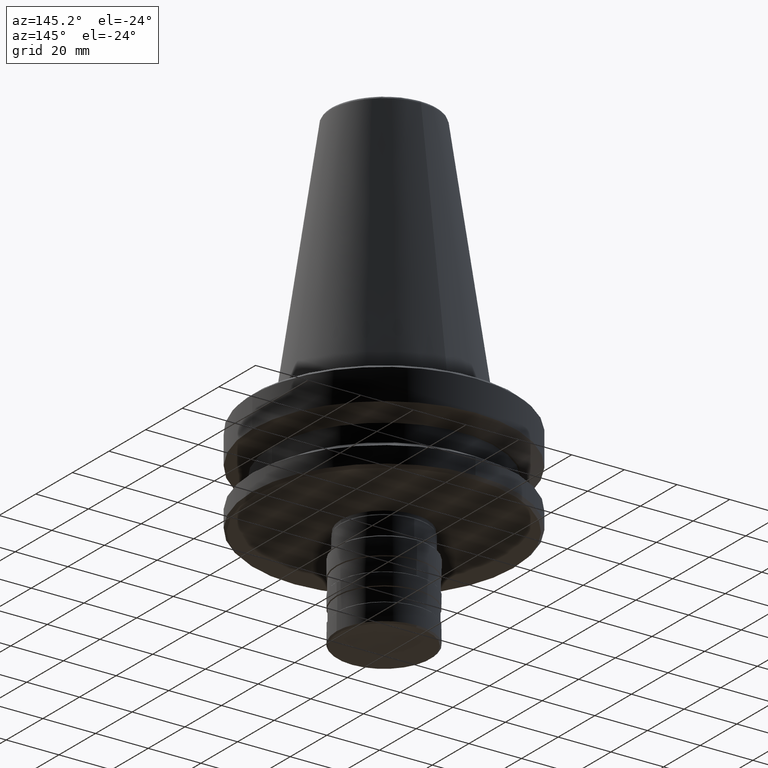
[diagram: clean part render]
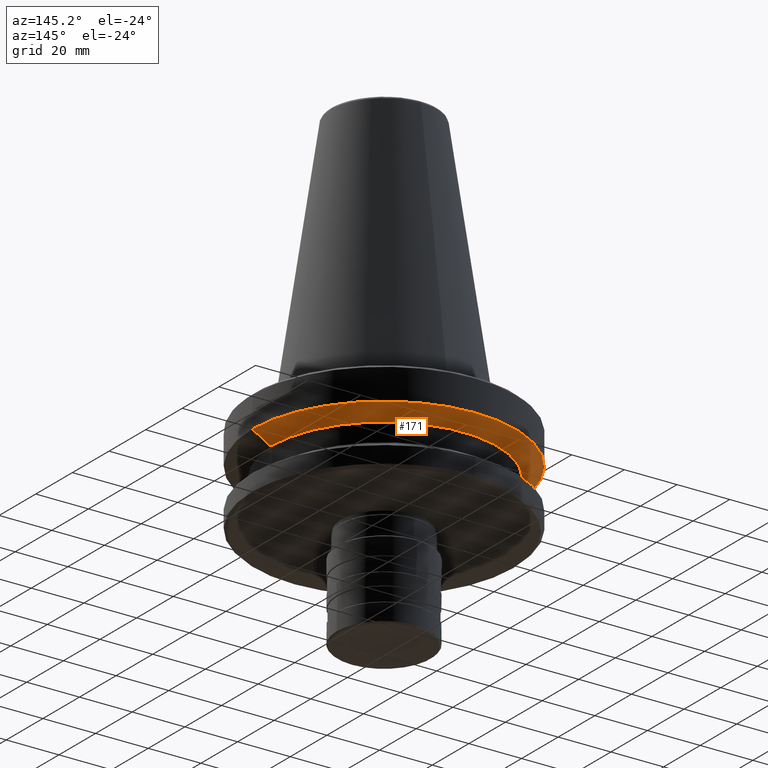
[diagram: same view with one face highlighted and labeled with its STEP entity id]
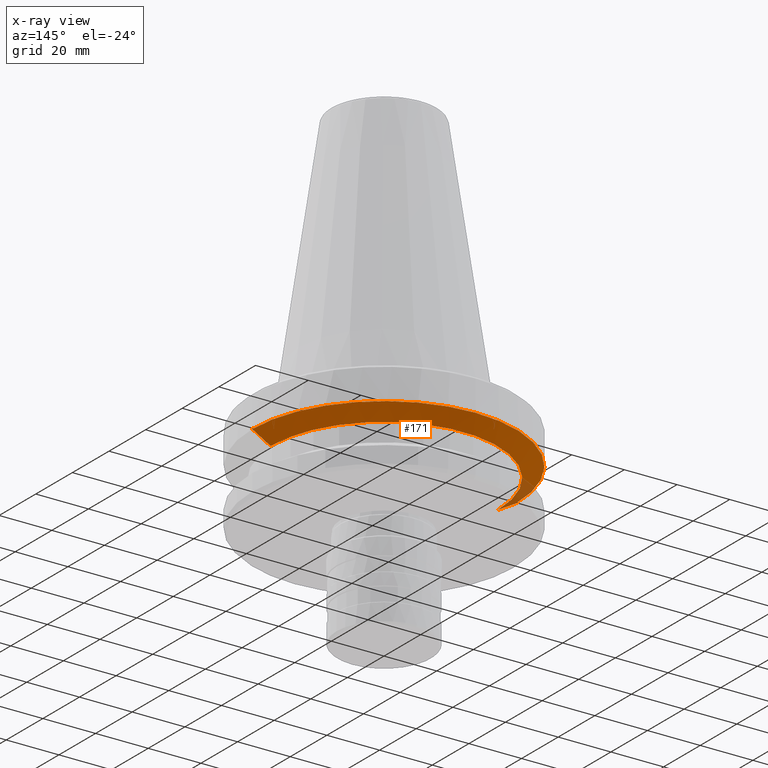
[diagram: x-ray of the same camera — body ghosted, the highlighted face saturated]
A machine part, auxiliary view. The second image highlights one B-rep face of the part: STEP entity #171.
The next image is the same camera in x-ray: the body ghosted, the highlighted face saturated — about 4% of this face is hidden behind the body in this view.
In plain terms, the highlighted conical surface has half-angle 60 deg.
Its self-contained STEP definition (entity closure, byte-faithful):
#14 = ORIENTED_EDGE ( 'NONE', *, *, #1989, .T. ) ;
#112 = DIRECTION ( 'NONE',  ( -0.8660254037875104700, 1.060575238728668800E-016, 0.4999999999946794200 ) ) ;
#120 = CARTESIAN_POINT ( 'NONE',  ( -50.00000000125927400, 6.123233995890982900E-015, -15.70022000227295300 ) ) ;
#171 = ADVANCED_FACE ( 'NONE', ( #1619 ), #2022, .T. ) ;
#202 = VERTEX_POINT ( 'NONE', #1921 ) ;
#221 = CARTESIAN_POINT ( 'NONE',  ( -43.07217782308627100, 5.699027233112901500E-015, -19.70000000168224800 ) ) ;
#297 = ORIENTED_EDGE ( 'NONE', *, *, #1135, .T. ) ;
#303 = VECTOR ( 'NONE', #1528, 1000.000000000000000 ) ;
#597 = AXIS2_PLACEMENT_3D ( 'NONE', #1846, #1993, #1988 ) ;
#600 = DIRECTION ( 'NONE',  ( 1.000000000000000000, 0.0000000000000000000, 0.0000000000000000000 ) ) ;
#607 = DIRECTION ( 'NONE',  ( -0.0000000000000000000, -0.0000000000000000000, -1.000000000000000000 ) ) ;
#611 = CIRCLE ( 'NONE', #2249, 43.07217782308627100 ) ;
#612 = CARTESIAN_POINT ( 'NONE',  ( 0.0000000000000000000, 0.0000000000000000000, -15.70022000227295700 ) ) ;
#642 = EDGE_CURVE ( 'NONE', #1503, #202, #2037, .T. ) ;
#646 = ORIENTED_EDGE ( 'NONE', *, *, #1986, .F. ) ;
#706 = LINE ( 'NONE', #120, #1420 ) ;
#882 = AXIS2_PLACEMENT_3D ( 'NONE', #612, #607, #600 ) ;
#1135 = EDGE_CURVE ( 'NONE', #1264, #1503, #706, .T. ) ;
#1264 = VERTEX_POINT ( 'NONE', #221 ) ;
#1420 = VECTOR ( 'NONE', #112, 1000.000000000000000 ) ;
#1471 = DIRECTION ( 'NONE',  ( 1.000000000000000000, 0.0000000000000000000, 0.0000000000000000000 ) ) ;
#1498 = DIRECTION ( 'NONE',  ( 0.0000000000000000000, -0.0000000000000000000, 1.000000000000000000 ) ) ;
#1503 = VERTEX_POINT ( 'NONE', #1851 ) ;
#1506 = CARTESIAN_POINT ( 'NONE',  ( 0.0000000000000000000, 0.0000000000000000000, -19.70000000168224800 ) ) ;
#1518 = CARTESIAN_POINT ( 'NONE',  ( 50.00000000125927400, 0.0000000000000000000, -15.70022000227295300 ) ) ;
#1528 = DIRECTION ( 'NONE',  ( 0.8660254037875104700, 0.0000000000000000000, 0.4999999999946794200 ) ) ;
#1594 = VERTEX_POINT ( 'NONE', #2139 ) ;
#1619 = FACE_OUTER_BOUND ( 'NONE', #2168, .T. ) ;
#1673 = LINE ( 'NONE', #1518, #303 ) ;
#1846 = CARTESIAN_POINT ( 'NONE',  ( 0.0000000000000000000, 0.0000000000000000000, -15.70022000227295300 ) ) ;
#1851 = CARTESIAN_POINT ( 'NONE',  ( -50.00000000125926600, 6.123233995890982100E-015, -15.70022000227295700 ) ) ;
#1921 = CARTESIAN_POINT ( 'NONE',  ( 50.00000000125926600, 0.0000000000000000000, -15.70022000227295700 ) ) ;
#1986 = EDGE_CURVE ( 'NONE', #1594, #202, #1673, .T. ) ;
#1988 = DIRECTION ( 'NONE',  ( 1.000000000000000000, 0.0000000000000000000, 0.0000000000000000000 ) ) ;
#1989 = EDGE_CURVE ( 'NONE', #1594, #1264, #611, .T. ) ;
#1993 = DIRECTION ( 'NONE',  ( 0.0000000000000000000, -0.0000000000000000000, 1.000000000000000000 ) ) ;
#2022 = CONICAL_SURFACE ( 'NONE', #597, 50.00000000125927400, 1.047197551202741400 ) ;
#2037 = CIRCLE ( 'NONE', #882, 50.00000000125926600 ) ;
#2139 = CARTESIAN_POINT ( 'NONE',  ( 43.07217782308627100, 0.0000000000000000000, -19.70000000168224800 ) ) ;
#2168 = EDGE_LOOP ( 'NONE', ( #14, #297, #2192, #646 ) ) ;
#2192 = ORIENTED_EDGE ( 'NONE', *, *, #642, .T. ) ;
#2249 = AXIS2_PLACEMENT_3D ( 'NONE', #1506, #1498, #1471 ) ;